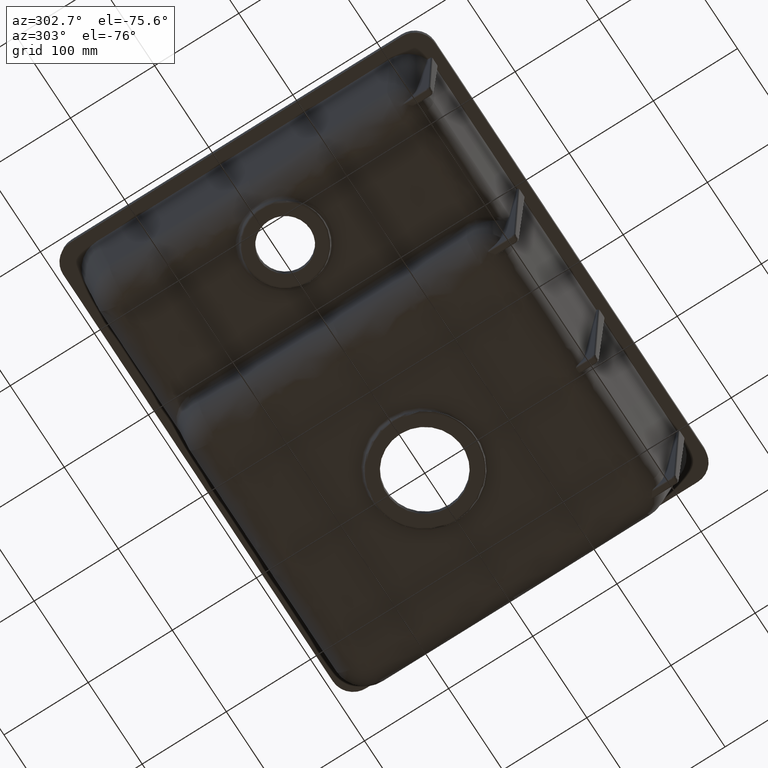
[diagram: clean part render]
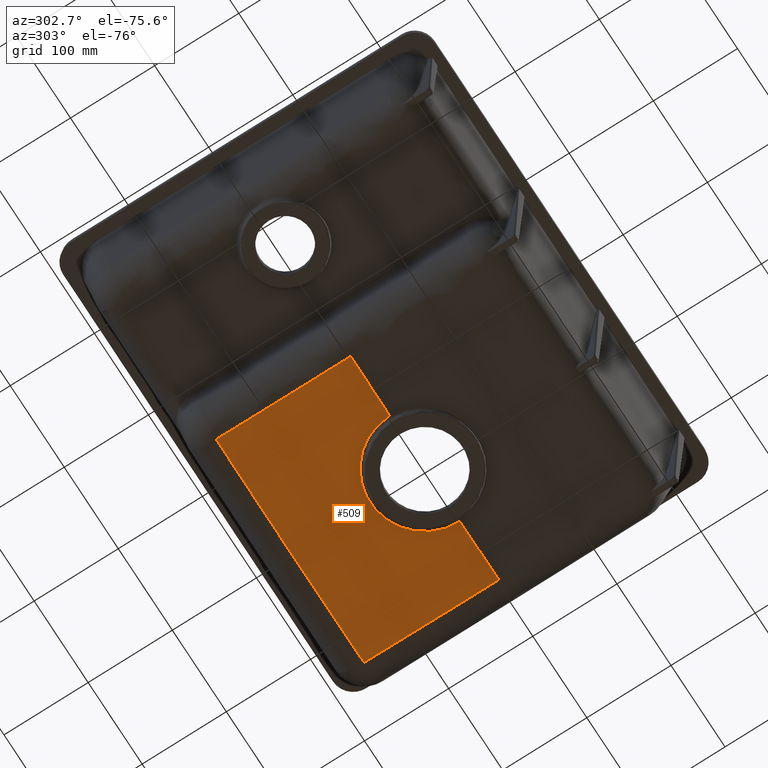
[diagram: same view with one face highlighted and labeled with its STEP entity id]
A machine part, auxiliary view. The second image highlights one B-rep face of the part: STEP entity #509.
In plain terms, the highlighted conical surface has half-angle 87.5 deg.
Its self-contained STEP definition (entity closure, byte-faithful):
#59=CONICAL_SURFACE('',#2970,0.,87.5000000000032);
#226=FACE_OUTER_BOUND('',#771,.T.);
#368=CIRCLE('',#2937,64.8255224505392);
#509=ADVANCED_FACE('',(#226),#59,.T.);
#771=EDGE_LOOP('',(#1341,#1342,#1343,#1344,#1345,#1346));
#981=B_SPLINE_CURVE_WITH_KNOTS('',3,(#5581,#5582,#5583,#5584,#5585,#5586,
#5587,#5588,#5589,#5590,#5591,#5592,#5593,#5594,#5595,#5596,#5597,#5598,
#5599,#5600,#5601,#5602,#5603,#5604,#5605,#5606,#5607,#5608,#5609,#5610,
#5611,#5612,#5613,#5614,#5615,#5616,#5617,#5618,#5619,#5620,#5621,#5622),
 .UNSPECIFIED.,.F.,.F.,(4,2,2,2,2,2,2,2,2,2,2,2,2,2,2,2,2,2,2,2,4),(0.,
0.125,0.1875,0.218750000000001,0.234375000000001,0.242187500000001,0.250000000000001,
0.3125,0.34375,0.375,0.499999999999999,0.562499999999999,0.593749999999999,
0.609374999999999,0.624999999999999,0.687499999999999,0.718749999999998,
0.734374999999998,0.742187499999998,0.749999999999998,1.),.UNSPECIFIED.);
#982=B_SPLINE_CURVE_WITH_KNOTS('',3,(#5625,#5626,#5627,#5628,#5629,#5630,
#5631,#5632,#5633,#5634,#5635,#5636,#5637,#5638,#5639,#5640,#5641,#5642,
#5643,#5644,#5645,#5646,#5647,#5648,#5649,#5650,#5651,#5652,#5653,#5654,
#5655,#5656,#5657),.UNSPECIFIED.,.F.,.F.,(4,2,2,2,1,2,2,2,2,2,2,2,2,2,2,
2,4),(0.,0.124999999999998,0.187499999999997,0.218749999999997,0.234374999999997,
0.242187499999997,0.249999999999997,0.374999999999996,0.437499999999996,
0.468749999999996,0.484374999999996,0.499999999999996,0.624999999999997,
0.687499999999998,0.718749999999998,0.749999999999998,1.),.UNSPECIFIED.);
#983=B_SPLINE_CURVE_WITH_KNOTS('',3,(#5660,#5661,#5662,#5663),
 .UNSPECIFIED.,.F.,.F.,(4,4),(0.,1.),.UNSPECIFIED.);
#984=B_SPLINE_CURVE_WITH_KNOTS('',3,(#5665,#5666,#5667,#5668,#5669,#5670,
#5671,#5672,#5673,#5674,#5675,#5676,#5677,#5678,#5679,#5680,#5681,#5682,
#5683,#5684,#5685,#5686,#5687,#5688,#5689,#5690,#5691,#5692,#5693,#5694,
#5695,#5696,#5697,#5698),.UNSPECIFIED.,.F.,.F.,(4,2,2,2,2,2,2,2,1,2,2,2,
2,2,1,2,2,4),(0.,0.125,0.187499999999999,0.218749999999999,0.249999999999999,
0.374999999999999,0.437499999999998,0.468749999999998,0.484374999999998,
0.492187499999998,0.499999999999998,0.624999999999999,0.687499999999999,
0.718749999999999,0.734374999999999,0.7421875,0.75,1.),.UNSPECIFIED.);
#1341=ORIENTED_EDGE('',*,*,#2408,.T.);
#1342=ORIENTED_EDGE('',*,*,#2409,.T.);
#1343=ORIENTED_EDGE('',*,*,#2410,.F.);
#1344=ORIENTED_EDGE('',*,*,#2357,.F.);
#1345=ORIENTED_EDGE('',*,*,#2411,.F.);
#1346=ORIENTED_EDGE('',*,*,#2412,.T.);
#2075=VERTEX_POINT('',#4686);
#2076=VERTEX_POINT('',#4687);
#2106=VERTEX_POINT('',#5623);
#2107=VERTEX_POINT('',#5624);
#2108=VERTEX_POINT('',#5658);
#2109=VERTEX_POINT('',#5664);
#2357=EDGE_CURVE('',#2075,#2076,#368,.T.);
#2408=EDGE_CURVE('',#2106,#2107,#981,.T.);
#2409=EDGE_CURVE('',#2107,#2108,#982,.T.);
#2410=EDGE_CURVE('',#2076,#2108,#2726,.T.);
#2411=EDGE_CURVE('',#2109,#2075,#983,.T.);
#2412=EDGE_CURVE('',#2109,#2106,#984,.T.);
#2726=LINE('',#5659,#2827);
#2827=VECTOR('',#3347,1.);
#2937=AXIS2_PLACEMENT_3D('',#4688,#3278,#3279);
#2970=AXIS2_PLACEMENT_3D('',#5699,#3348,#3349);
#3278=DIRECTION('',(5.73731917908104E-14,-4.28158147693107E-16,-1.));
#3279=DIRECTION('',(1.,0.,5.73731917908105E-14));
#3347=DIRECTION('',(0.999048221581858,0.,0.0436193873653371));
#3348=DIRECTION('',(-5.74786584956729E-14,4.31918308257672E-28,1.));
#3349=DIRECTION('',(-1.,0.,-5.74821625276476E-14));
#4686=CARTESIAN_POINT('',(-64.8255224505386,0.,-193.914621571091));
#4687=CARTESIAN_POINT('',(64.8255224504824,-2.77555756156289E-14,-193.914621571086));
#4688=CARTESIAN_POINT('',(3.33066907387547E-13,-2.77555756156289E-14,-193.914621571087));
#5581=CARTESIAN_POINT('',(-136.789991460641,159.980217043826,-187.554863206925));
#5582=CARTESIAN_POINT('',(-124.635178017142,159.986669223871,-187.899529500403));
#5583=CARTESIAN_POINT('',(-112.942780960632,159.999301796878,-188.204358846329));
#5584=CARTESIAN_POINT('',(-95.9315460356255,160.016679318575,-188.601847443888));
#5585=CARTESIAN_POINT('',(-90.3480157198355,160.022709644553,-188.724384406187));
#5586=CARTESIAN_POINT('',(-82.0721874126275,160.032201679874,-188.893250994302));
#5587=CARTESIAN_POINT('',(-79.3300807211406,160.035433388476,-188.947050047785));
#5588=CARTESIAN_POINT('',(-75.2371286416123,160.040215966715,-189.024013914177));
#5589=CARTESIAN_POINT('',(-73.8761744195008,160.041797456799,-189.049046084002));
#5590=CARTESIAN_POINT('',(-71.8391758003996,160.044108986462,-189.085660660281));
#5591=CARTESIAN_POINT('',(-71.1609147426832,160.044869212478,-189.097709905965));
#5592=CARTESIAN_POINT('',(-69.8057639565731,160.046359986763,-189.121497171179));
#5593=CARTESIAN_POINT('',(-69.1772449341998,160.047039729714,-189.132406736024));
#5594=CARTESIAN_POINT('',(-62.6555857815014,160.053890225416,-189.244104486279));
#5595=CARTESIAN_POINT('',(-56.9339978829083,160.059429314431,-189.331452241635));
#5596=CARTESIAN_POINT('',(-48.4036089548688,160.070274253808,-189.444565174032));
#5597=CARTESIAN_POINT('',(-45.5687035711279,160.074208607384,-189.479284701391));
#5598=CARTESIAN_POINT('',(-39.904599751528,160.081772115611,-189.542754189229));
#5599=CARTESIAN_POINT('',(-37.1324055563166,160.085359931326,-189.570985578211));
#5600=CARTESIAN_POINT('',(-22.6853182597833,160.097537726828,-189.702404320896));
#5601=CARTESIAN_POINT('',(-11.4192515676428,160.103530994067,-189.754871389946));
#5602=CARTESIAN_POINT('',(5.79491743757006,160.104320224426,-189.754570004665));
#5603=CARTESIAN_POINT('',(11.4794239660406,160.09862964549,-189.741324162423));
#5604=CARTESIAN_POINT('',(20.0210700132613,160.094235967494,-189.70173732834));
#5605=CARTESIAN_POINT('',(22.8707457189872,160.093194516724,-189.685255371858));
#5606=CARTESIAN_POINT('',(27.1604704519502,160.091603939076,-189.655602919456));
#5607=CARTESIAN_POINT('',(28.5929102050008,160.091053652272,-189.644897182375));
#5608=CARTESIAN_POINT('',(31.464721366559,160.089623185814,-189.621842535653));
#5609=CARTESIAN_POINT('',(32.933772359802,160.088717228198,-189.6092228781));
#5610=CARTESIAN_POINT('',(40.0041320940253,160.082608258654,-189.544724138053));
#5611=CARTESIAN_POINT('',(45.6485693604716,160.07349377976,-189.481216513905));
#5612=CARTESIAN_POINT('',(54.1677422967083,160.0626001856,-189.368092129519));
#5613=CARTESIAN_POINT('',(57.0161326181562,160.059270608459,-189.327406843363));
#5614=CARTESIAN_POINT('',(61.3096441876445,160.054615778894,-189.261913177088));
#5615=CARTESIAN_POINT('',(62.7442960151403,160.053113137222,-189.239337665489));
#5616=CARTESIAN_POINT('',(64.9024277039911,160.050855966714,-189.204357963831));
#5617=CARTESIAN_POINT('',(65.6228301746359,160.050102640109,-189.192511990902));
#5618=CARTESIAN_POINT('',(67.0658358820976,160.048576762077,-189.168447900289));
#5619=CARTESIAN_POINT('',(67.8358725415386,160.047752283201,-189.155416862151));
#5620=CARTESIAN_POINT('',(90.1552126585791,160.023321137096,-188.772904965213));
#5621=CARTESIAN_POINT('',(112.548515327069,159.992287919741,-188.24251559282));
#5622=CARTESIAN_POINT('',(136.867657621157,159.980267451475,-187.552657475367));
#5623=CARTESIAN_POINT('',(-136.790296795128,159.979869597527,-187.554866073093));
#5624=CARTESIAN_POINT('',(136.867681369982,159.979843556521,-187.552670864552));
#5625=CARTESIAN_POINT('',(136.867751247097,159.979843485169,-187.552668883581));
#5626=CARTESIAN_POINT('',(136.867180480377,152.890958953479,-187.787867790742));
#5627=CARTESIAN_POINT('',(136.871531892025,145.99887439309,-188.009787840136));
#5628=CARTESIAN_POINT('',(136.877648347754,135.943434376406,-188.322749627574));
#5629=CARTESIAN_POINT('',(136.879741017478,132.638660653934,-188.423750508945));
#5630=CARTESIAN_POINT('',(136.882984504073,127.7497259141,-188.570272259339));
#5631=CARTESIAN_POINT('',(136.884089448122,126.1314461107,-188.618282914193));
#5632=CARTESIAN_POINT('',(136.885838907607,123.720726497562,-188.689054003558));
#5633=CARTESIAN_POINT('',(136.88673717268,122.519541106816,-188.724128325012));
#5634=CARTESIAN_POINT('',(136.887685850028,121.324546533557,-188.758735811622));
#5635=CARTESIAN_POINT('',(136.888331480289,120.529250953136,-188.781703728286));
#5636=CARTESIAN_POINT('',(136.888625995184,120.173298582447,-188.79195807206));
#5637=CARTESIAN_POINT('',(136.894947887669,112.739263926049,-189.005443413744));
#5638=CARTESIAN_POINT('',(136.90485547278,105.920341450734,-189.191133274608));
#5639=CARTESIAN_POINT('',(136.919932674088,95.9222923370785,-189.446811786587));
#5640=CARTESIAN_POINT('',(136.925100285013,92.6278378221553,-189.52822857736));
#5641=CARTESIAN_POINT('',(136.933002516105,87.7373712644734,-189.644639693691));
#5642=CARTESIAN_POINT('',(136.9356646239,86.1157399287304,-189.682491054164));
#5643=CARTESIAN_POINT('',(136.93970710212,83.6952046458753,-189.737839577415));
#5644=CARTESIAN_POINT('',(136.941062858667,82.8903440657343,-189.756050998922));
#5645=CARTESIAN_POINT('',(136.943792148828,81.2844367825296,-189.791997669451));
#5646=CARTESIAN_POINT('',(136.945071352693,80.5379157811065,-189.808539199083));
#5647=CARTESIAN_POINT('',(136.958366014042,72.8541998076954,-189.976757138603));
#5648=CARTESIAN_POINT('',(136.968027799409,66.1755218631059,-190.108663586246));
#5649=CARTESIAN_POINT('',(136.985795342237,56.2915383023153,-190.280092343149));
#5650=CARTESIAN_POINT('',(136.992161325828,53.0189303955259,-190.33283010969));
#5651=CARTESIAN_POINT('',(137.00160950108,48.1289475268624,-190.405329030861));
#5652=CARTESIAN_POINT('',(137.00472753644,46.5020906521041,-190.428394049811));
#5653=CARTESIAN_POINT('',(137.01056867399,43.2520906557606,-190.472321511497));
#5654=CARTESIAN_POINT('',(137.013215848605,41.6835694458649,-190.492518740221));
#5655=CARTESIAN_POINT('',(137.03441021591,26.5882914315715,-190.67635605801));
#5656=CARTESIAN_POINT('',(137.04935309894,13.3805761843115,-190.761261024509));
#5657=CARTESIAN_POINT('',(137.049366547527,-6.85463970621683E-15,-190.761260437331));
#5658=CARTESIAN_POINT('',(137.049366547461,2.77555756156289E-14,-190.761260437334));
#5659=CARTESIAN_POINT('',(4.44089209850063E-13,0.,-196.744965005811));
#5660=CARTESIAN_POINT('',(-136.971637303634,-1.09813878958447E-14,-190.764654169427));
#5661=CARTESIAN_POINT('',(-112.922932352602,-1.39265048500363E-14,-191.814643303315));
#5662=CARTESIAN_POINT('',(-88.8742274015703,-1.68716218042279E-14,-192.864632437203));
#5663=CARTESIAN_POINT('',(-64.8255224505384,-1.98167387584194E-14,-193.914621571091));
#5664=CARTESIAN_POINT('',(-136.97147832557,-1.90444882086638E-9,-190.764661110559));
#5665=CARTESIAN_POINT('',(-136.971088428256,6.13038166195101E-14,-190.764678133844));
#5666=CARTESIAN_POINT('',(-136.9712368551,6.69088424239491,-190.764671653388));
#5667=CARTESIAN_POINT('',(-136.967993981181,13.3712831174711,-190.743284894749));
#5668=CARTESIAN_POINT('',(-136.959274125402,23.3656711019844,-190.680504288592));
#5669=CARTESIAN_POINT('',(-136.955160364849,26.6916458034719,-190.654531468451));
#5670=CARTESIAN_POINT('',(-136.949073412422,31.6952502112204,-190.608003311103));
#5671=CARTESIAN_POINT('',(-136.947018208602,33.3655452792222,-190.591232437465));
#5672=CARTESIAN_POINT('',(-136.942720115326,36.714616847251,-190.555167714478));
#5673=CARTESIAN_POINT('',(-136.940391247351,38.4498805432637,-190.535184684698));
#5674=CARTESIAN_POINT('',(-136.928111356845,46.5912472250326,-190.435853900819));
#5675=CARTESIAN_POINT('',(-136.913297920556,53.1152653978386,-190.338600305664));
#5676=CARTESIAN_POINT('',(-136.895691710781,63.0389776523144,-190.166036460853));
#5677=CARTESIAN_POINT('',(-136.890284728613,66.3695576413211,-190.104067937237));
#5678=CARTESIAN_POINT('',(-136.882320692528,71.4120593973849,-190.004444288793));
#5679=CARTESIAN_POINT('',(-136.879679924523,73.1006471303481,-189.970124595475));
#5680=CARTESIAN_POINT('',(-136.875596983238,75.6465738427971,-189.916977339743));
#5681=CARTESIAN_POINT('',(-136.873524452545,76.9227967858797,-189.889986782938));
#5682=CARTESIAN_POINT('',(-136.871373939266,78.2041591067051,-189.862370832726));
#5683=CARTESIAN_POINT('',(-136.869919196724,79.0595694730243,-189.843821222938));
#5684=CARTESIAN_POINT('',(-136.869128829644,79.5178539180722,-189.833818564522));
#5685=CARTESIAN_POINT('',(-136.857265630684,86.2990262326671,-189.684976495212));
#5686=CARTESIAN_POINT('',(-136.847045670989,92.8005674842022,-189.529671539585));
#5687=CARTESIAN_POINT('',(-136.832337207306,102.785219360058,-189.273886652905));
#5688=CARTESIAN_POINT('',(-136.827550910849,106.151962309286,-189.184820448472));
#5689=CARTESIAN_POINT('',(-136.820890119675,111.264888493612,-189.045514278513));
#5690=CARTESIAN_POINT('',(-136.81876112223,112.979655007356,-188.998127744642));
#5691=CARTESIAN_POINT('',(-136.815799524697,115.568026188653,-188.925621228008));
#5692=CARTESIAN_POINT('',(-136.814377311623,116.866266197132,-188.889011290734));
#5693=CARTESIAN_POINT('',(-136.813066684076,118.170679856565,-188.851866335025));
#5694=CARTESIAN_POINT('',(-136.812220800091,119.041670558148,-188.826984138233));
#5695=CARTESIAN_POINT('',(-136.811773616633,119.520219411008,-188.813265701093));
#5696=CARTESIAN_POINT('',(-136.800047274764,132.539348588185,-188.438976429789));
#5697=CARTESIAN_POINT('',(-136.78926270686,145.865006223407,-188.023285035369));
#5698=CARTESIAN_POINT('',(-136.790884478515,159.979868977287,-187.554849418703));
#5699=CARTESIAN_POINT('',(4.44089209850063E-13,2.77555756156289E-14,-196.744965005811));